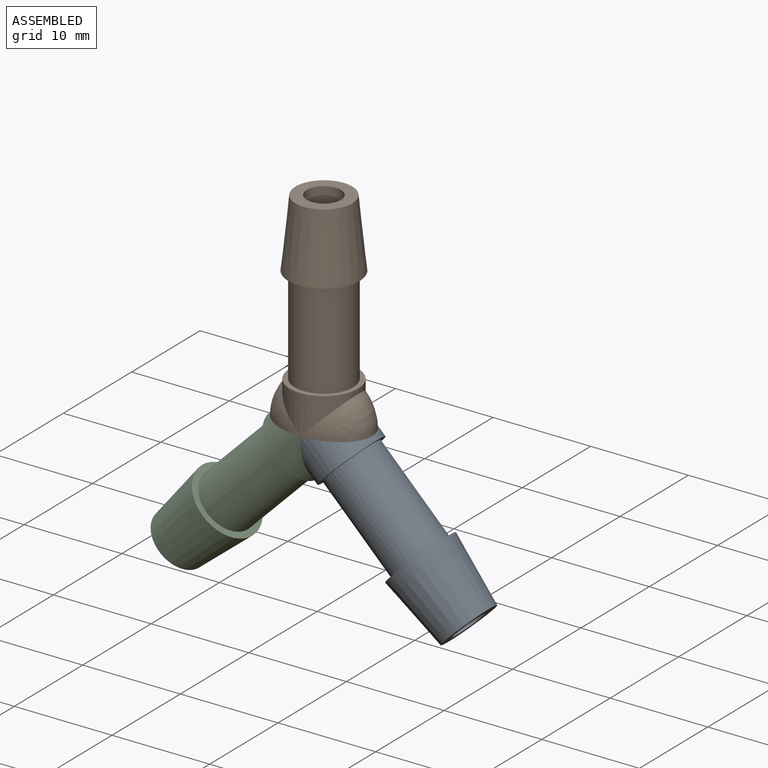
[diagram: assembled view]
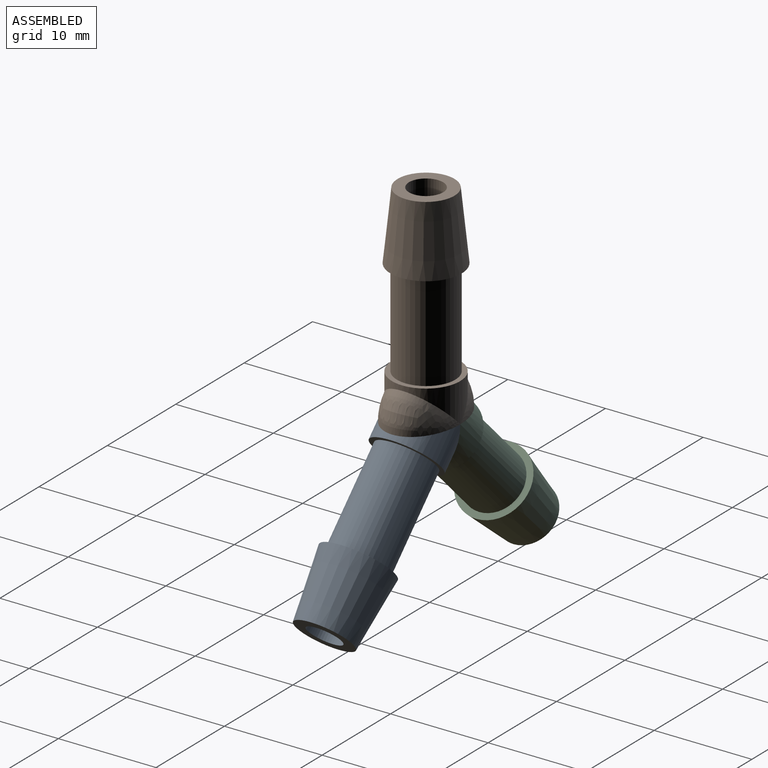
[diagram: assembled view, second angle]
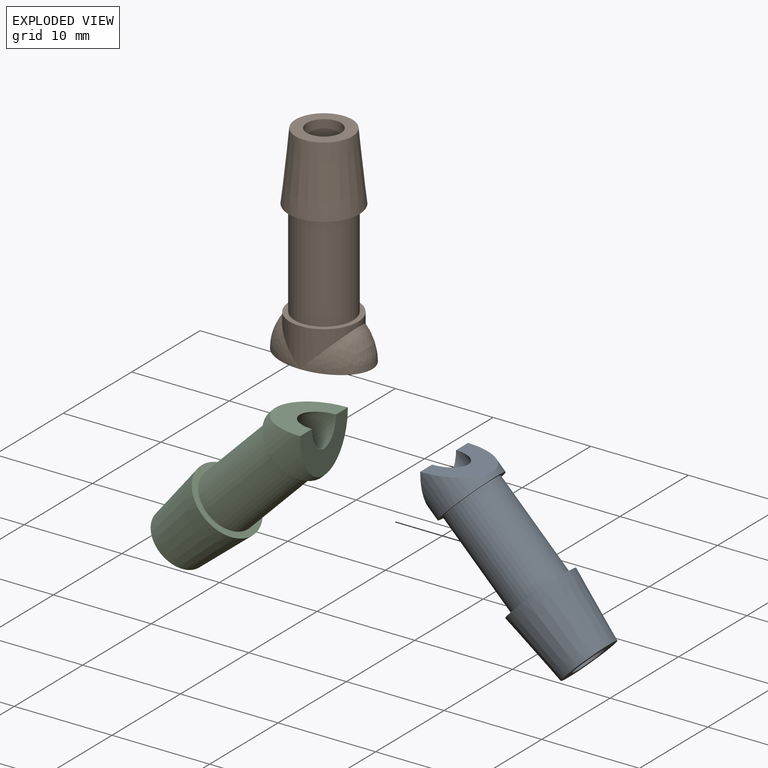
[diagram: exploded view]
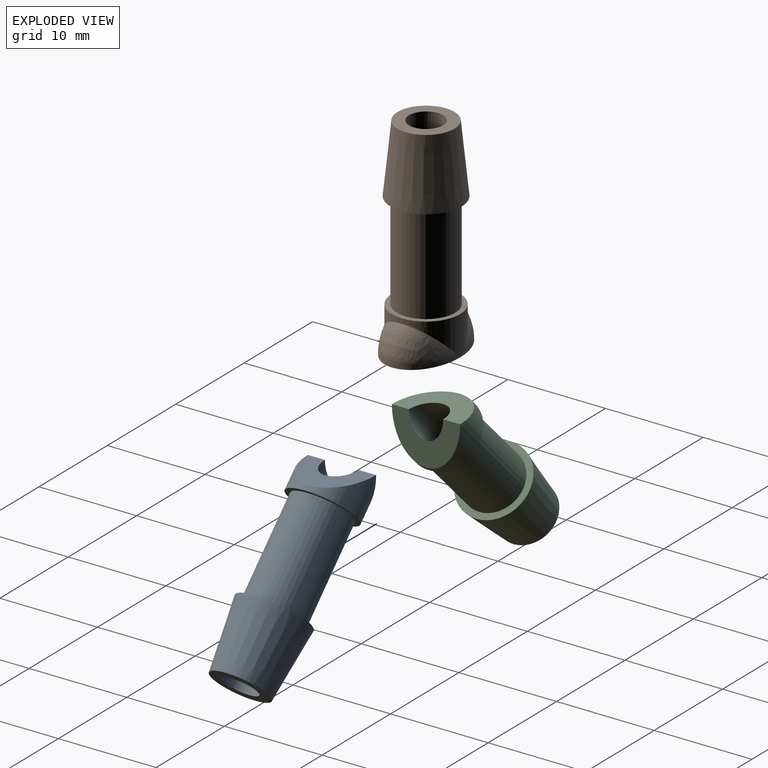
[diagram: exploded view, second angle]
ASSEMBLY  parts=3 mates=2
PART A: 9 faces, bbox 7.3x7.3x21 mm
  f0: cylinder r=1.75mm len=21mm, axis (0,0,-1), area 218.7mm2, adj f3,f7,f8
  f1: cylinder r=3.5mm len=7mm, axis (0,0,1), area 39mm2, adj f6,f7,f8
  f2: cone r=3.65mm half-angle=6deg, axis (0,0,-1), area 145.2mm2, adj f3,f4
  f3: plane 5.83x5.83mm, normal (0,0,1), area 17.1mm2, adj f0,f2
  f4: plane 7.3x7.3mm, normal (0,0,-1), area 13.6mm2, adj f2,f5
  f5: cylinder r=3mm len=10mm, axis (0,0,1), area 188.5mm2, adj f4,f6
  f6: plane 7x7mm, normal (0,0,1), area 10.2mm2, adj f1,f5
  f7: plane 7x3.5mm, normal (0.71,0,-0.71), area 20.4mm2, adj f0,f1,f8
  f8: plane 7x3.5mm, normal (-0.71,0,-0.71), area 20.4mm2, adj f0,f1,f7
PART B: 12 faces, bbox 9.9x7.3x21 mm
  f0: cylinder r=1.75mm len=21mm, axis (0,0,-1), area 218.7mm2, adj f3,f7,f10
  f1: cylinder r=3.5mm len=7mm, axis (0,0,1), area 39mm2, adj f6,f8,f11
  f2: cone r=3.65mm half-angle=6deg, axis (0,0,-1), area 145.2mm2, adj f3,f4
  f3: plane 5.83x5.83mm, normal (0,0,1), area 17.1mm2, adj f0,f2
  f4: plane 7.3x7.3mm, normal (0,0,-1), area 13.6mm2, adj f2,f5
  f5: cylinder r=3mm len=10mm, axis (0,0,1), area 188.5mm2, adj f4,f6
  f6: plane 7x7mm, normal (0,0,1), area 10.2mm2, adj f1,f5
  f7: revolved ~3.5x2.48mm, area 7.8mm2, adj f0,f9
  f8: revolved ~7x4.95mm, area 31.2mm2, adj f1,f9
  f9: plane 9.9x7mm, normal (0,0,-1), area 40.8mm2, adj f7,f8,f10,f11
  f10: revolved ~3.5x2.48mm, area 7.8mm2, adj f0,f9
  f11: revolved ~7x4.95mm, area 31.2mm2, adj f1,f9
PART C: same geometry as A
PLACE A rot(axis=(0,1,0),135deg) t=(10.54,0.09,-20.82)mm
PLACE B t=(0.64,0.09,3.08)mm fixed
PLACE C rot(axis=(-0.92,0,0.38),180deg) t=(-9.26,0.09,-20.82)mm
MATE fastened C.f7 <-> A.f7  axis (1,0,0) through (0.64,0.09,-13.37)mm
MATE fastened B.f1 <-> C.f8  axis (0,0,-1) through (0.64,0.09,-10.92)mm
